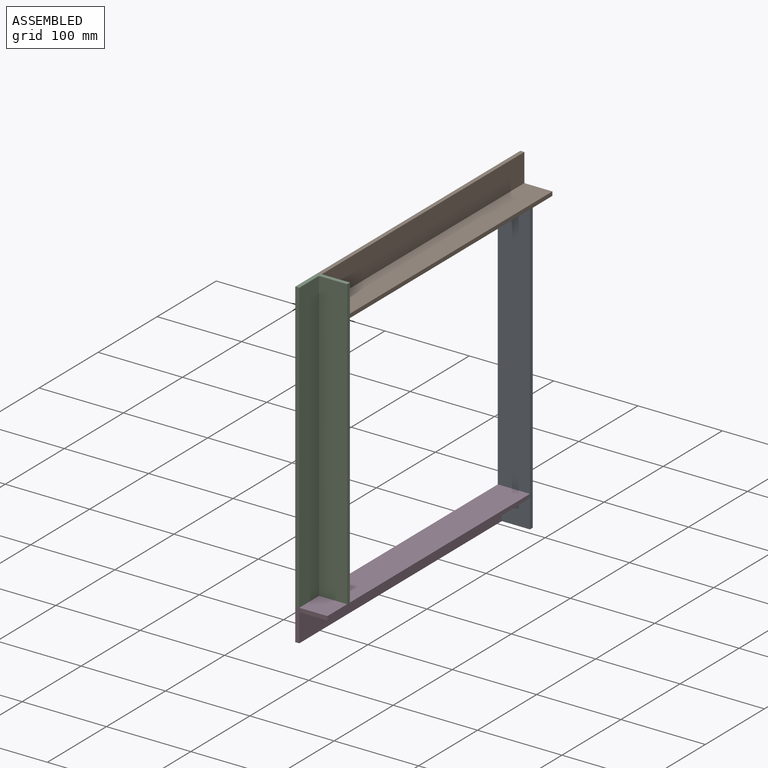
[diagram: assembled view]
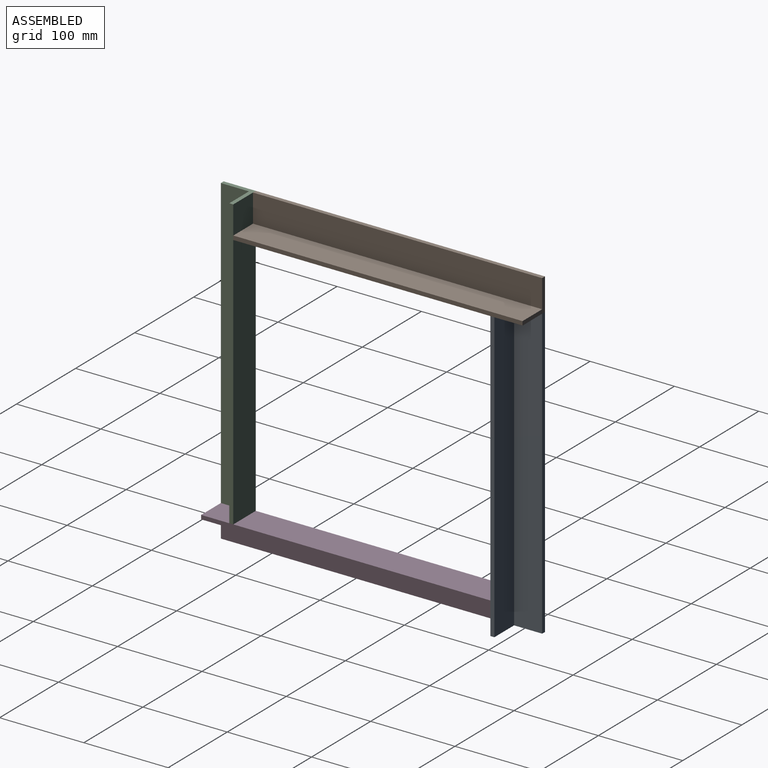
[diagram: assembled view, second angle]
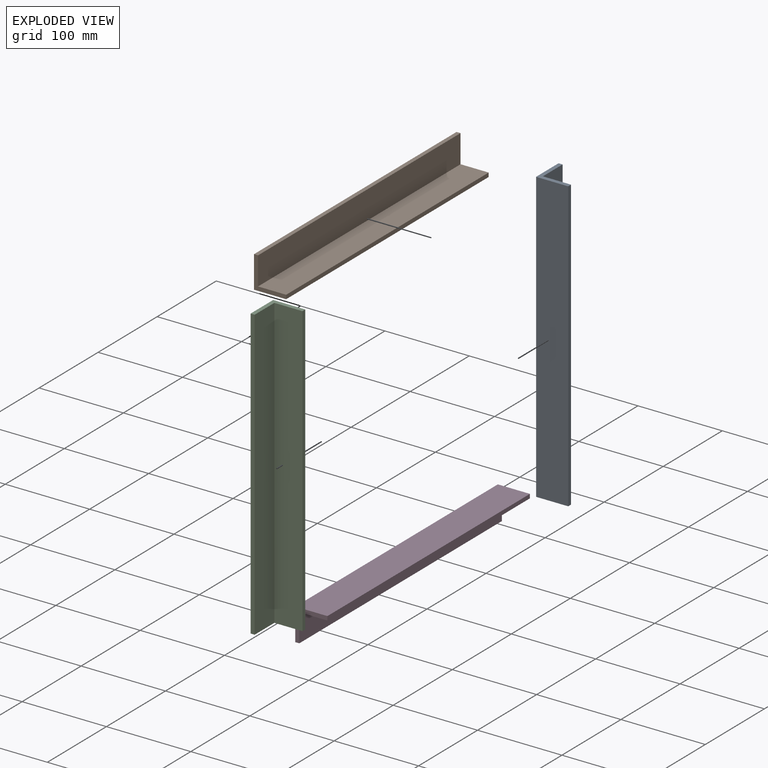
[diagram: exploded view]
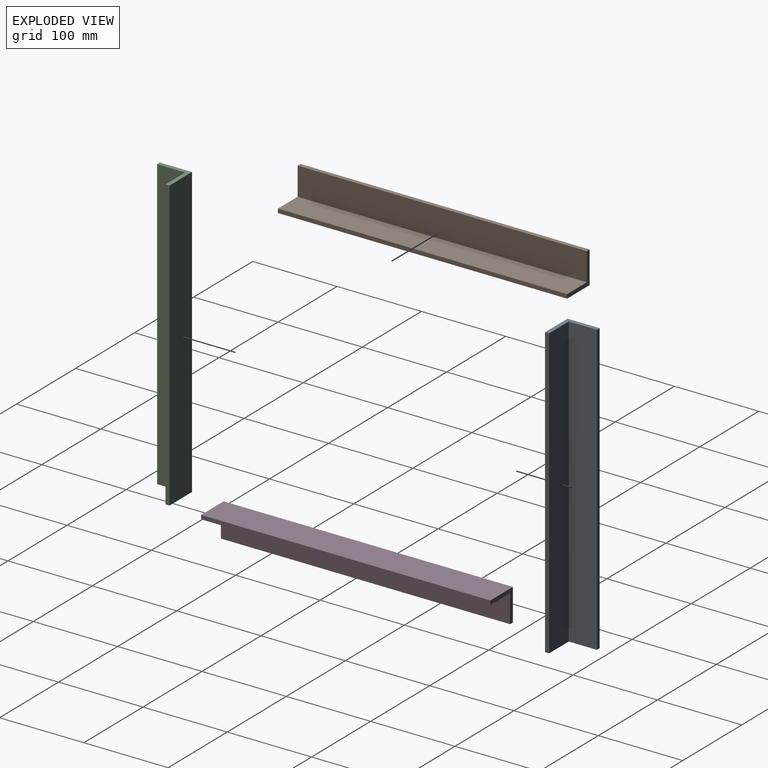
[diagram: exploded view, second angle]
ASSEMBLY  parts=4 mates=3
PART A: 8 faces, bbox 38.1x38.1x342.9 mm
  f0: plane 342.9x4.76mm, normal (1,0,0), area 1633.1mm2, adj f1,f5,f6,f7
  f1: plane 342.9x38.1mm, normal (0,1,0), area 13064.5mm2, adj f0,f2,f6,f7
  f2: plane 342.9x38.1mm, normal (-1,0,0), area 13064.5mm2, adj f1,f3,f6,f7
  f3: plane 342.9x4.76mm, normal (0,-1,0), area 1633.1mm2, adj f2,f4,f6,f7
  f4: plane 342.9x33.34mm, normal (1,0,0), area 11431.4mm2, adj f3,f5,f6,f7
  f5: plane 342.9x33.34mm, normal (0,-1,0), area 11431.4mm2, adj f0,f4,f6,f7
  f6: plane 38.1x38.1mm, normal (0,0,1), area 340.2mm2, adj f0,f1,f2,f3,f4,f5
  f7: plane 38.1x38.1mm, normal (0,0,-1), area 340.2mm2, adj f0,f1,f2,f3,f4,f5
PART B: same geometry as A
PART C: same geometry as A
PART D: same geometry as A
PLACE A rot(axis=(0,0,1),90deg) t=(-51.08,392.87,-78.29)mm
PLACE B rot(axis=(0.58,-0.58,0.58),120deg) t=(-51.08,430.97,264.61)mm
PLACE C t=(-51.08,88.07,-40.19)mm
PLACE D rot(axis=(1,0,0),90deg) t=(-51.08,392.87,-40.19)mm
MATE fastened D.f7 <-> A.f2  axis (0,1,0) through (-51.08,392.87,-78.29)mm
MATE fastened A.f6 <-> B.f2  axis (0,0,1) through (-51.08,430.97,264.61)mm
MATE fastened B.f6 <-> C.f1  axis (0,-1,0) through (-51.08,88.07,302.71)mm
